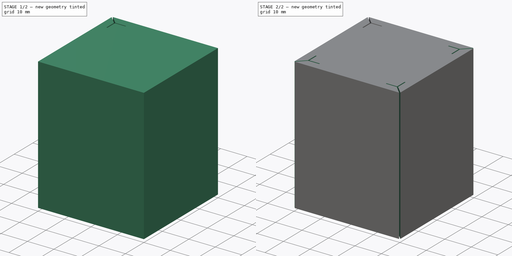
[diagram: build sequence overview — one tinted view per stage of 2, left to right]
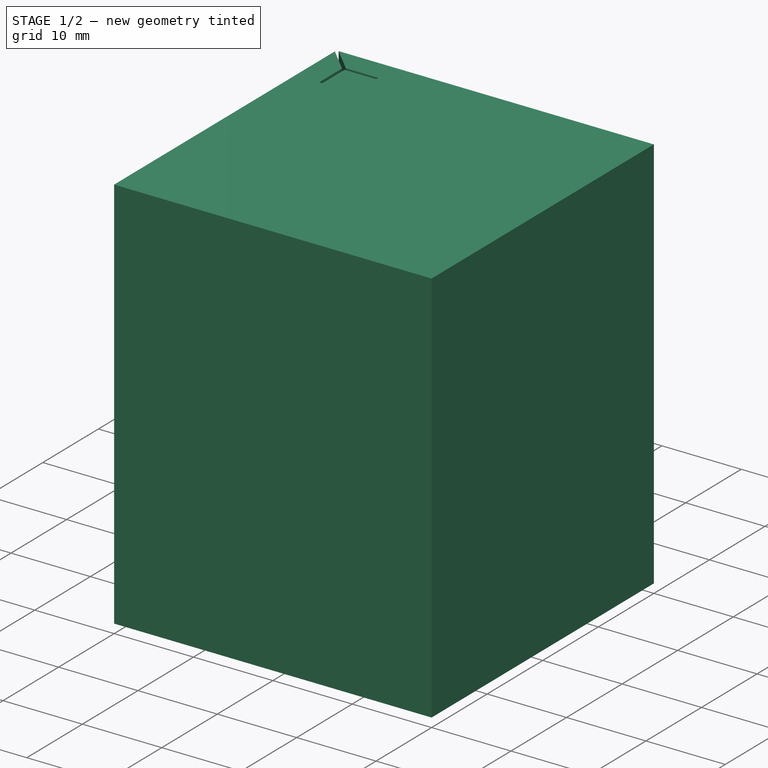
[diagram: stage 1 of 2 — iso view after this stage's code; geometry added in this stage tinted green]
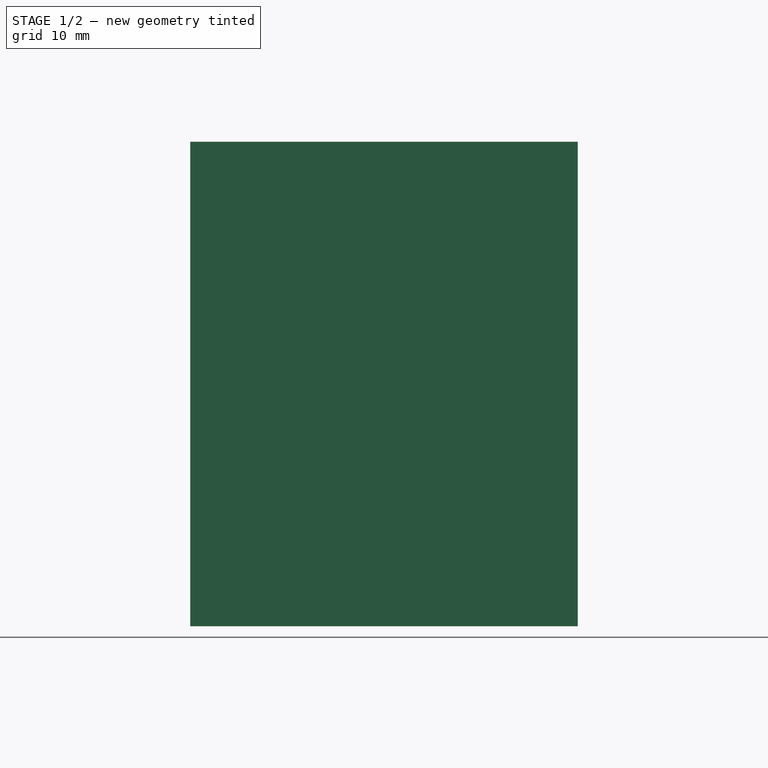
[diagram: stage 1 of 2 — front view after this stage's code; geometry added in this stage tinted green]
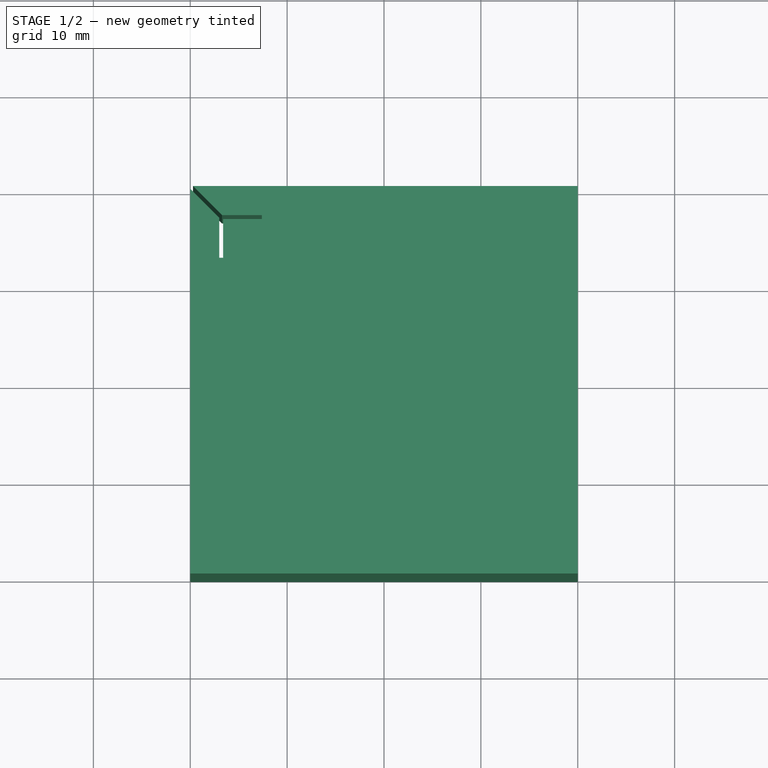
[diagram: stage 1 of 2 — top view after this stage's code; geometry added in this stage tinted green]
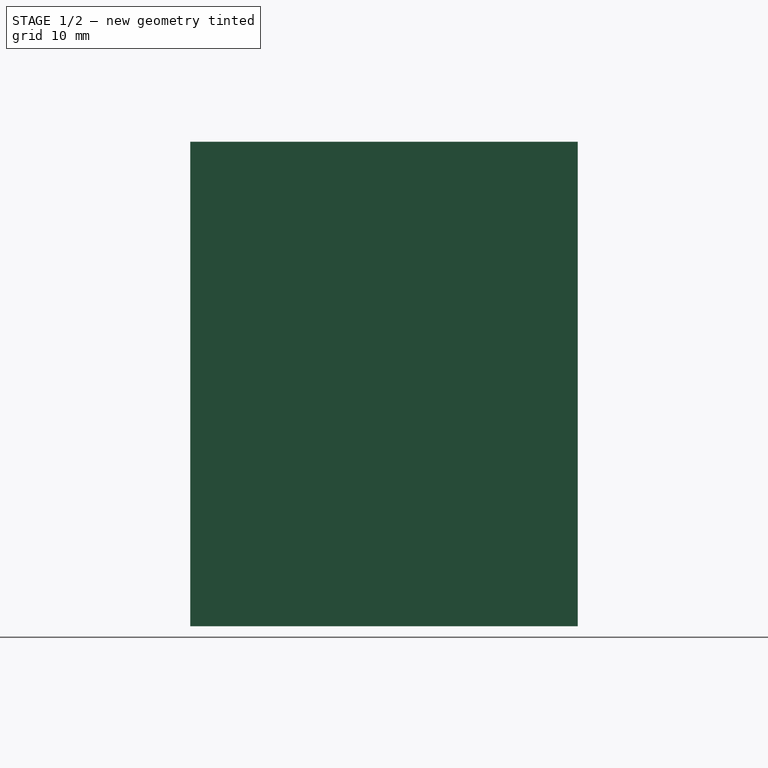
[diagram: stage 1 of 2 — right view after this stage's code; geometry added in this stage tinted green]
FCSTD DOCUMENT  (FreeCAD 0.19R)
Label: caixa_filamentador
License: All rights reserved
LicenseURL: http://en.wikipedia.org/wiki/All_rights_reserved
objects: Sketcher::SketchObject×2, PartDesign::Pad×1, PartDesign::Pocket×1, PartDesign::PolarPattern×1, PartDesign::Body×1
note: 8 computed .brp shape members not serialized (recipe doc carries the construction recipe); baked Part::Feature solids carry a one-line shape summary decoded from their .brp

FEATURE [Sketcher::SketchObject] Sketch
  FullyConstrained = true
  MapMode = 5
  Support = -> [XY_Plane]
  sketch-geometry (4):
    g0: LineSegment StartX=-20 StartY=20 StartZ=0 EndX=20 EndY=20 EndZ=0
    g1: LineSegment StartX=20 StartY=20 StartZ=0 EndX=20 EndY=-20 EndZ=0
    g2: LineSegment StartX=20 StartY=-20 StartZ=0 EndX=-20 EndY=-20 EndZ=0
    g3: LineSegment StartX=-20 StartY=-20 StartZ=0 EndX=-20 EndY=20 EndZ=0
  constraints (11):
    c: Coincident(g0,g1)
    c: Coincident(g1,g2)
    c: Coincident(g2,g3)
    c: Coincident(g3,g0)
    c: Horizontal(g0)
    c: Horizontal(g2)
    c: Vertical(g1)
    c: Vertical(g3)
    c: Symmetric(g1,g0,g-1)
    c: DistanceY(g1,g1) = 40
    c: Equal(g1,g2)
FEATURE [PartDesign::Pad] Pad
  Direction = (1,1,1)
  Length = 50
  Length2 = 100
  Profile = -> Sketch
  Type = 0
FEATURE [Sketcher::SketchObject] Sketch001
  FullyConstrained = true
  MapMode = 5
  Support = -> [XY_Plane]
  sketch-geometry (18):
    g0: LineSegment StartX=-20 StartY=20 StartZ=0 EndX=20 EndY=20 EndZ=0
    g1: LineSegment StartX=20 StartY=20 StartZ=0 EndX=20 EndY=-20 EndZ=0
    g2: LineSegment StartX=20 StartY=-20 StartZ=0 EndX=-20 EndY=-20 EndZ=0
    g3: LineSegment StartX=-20 StartY=-20 StartZ=0 EndX=-20 EndY=20 EndZ=0
    g4: LineSegment StartX=-17 StartY=17 StartZ=0 EndX=17 EndY=17 EndZ=0
    g5: LineSegment StartX=17 StartY=17 StartZ=0 EndX=17 EndY=-17 EndZ=0
    g6: LineSegment StartX=17 StartY=-17 StartZ=0 EndX=-17 EndY=-17 EndZ=0
    g7: LineSegment StartX=-17 StartY=-17 StartZ=0 EndX=-17 EndY=17 EndZ=0
    g8: LineSegment StartX=-19.7172 StartY=20 StartZ=0 EndX=-16.7172 EndY=17 EndZ=0
    g9: LineSegment StartX=-16.7172 StartY=17 StartZ=0 EndX=-12.6 EndY=17 EndZ=0
    g10: LineSegment StartX=-12.6 StartY=17 StartZ=0 EndX=-12.6 EndY=16.6 EndZ=0
    g11: LineSegment StartX=-12.6 StartY=16.6 StartZ=0 EndX=-16.6 EndY=16.6 EndZ=0
    g12: LineSegment StartX=-16.6 StartY=16.6 StartZ=0 EndX=-16.6 EndY=12.6 EndZ=0
    g13: LineSegment StartX=-16.6 StartY=12.6 StartZ=0 EndX=-17 EndY=12.6 EndZ=0
    g14: LineSegment StartX=-17 StartY=12.6 StartZ=0 EndX=-17 EndY=16.7172 EndZ=0
    g15: LineSegment StartX=-17 StartY=16.7172 StartZ=0 EndX=-20 EndY=19.7172 EndZ=0
    g16: LineSegment StartX=-20 StartY=19.7172 StartZ=0 EndX=-20 EndY=20 EndZ=0
    g17: LineSegment StartX=-20 StartY=20 StartZ=0 EndX=-19.7172 EndY=20 EndZ=0
  constraints (51):
    c: Coincident(g0,g1)
    c: Coincident(g1,g2)
    c: Coincident(g2,g3)
    c: Coincident(g3,g0)
    c: Horizontal(g0)
    c: Horizontal(g2)
    c: Vertical(g1)
    c: Vertical(g3)
    c: Equal(g1,g2)
    c: DistanceX(g2,g2) = 40
    c: Symmetric(g1,g0,g-1)
    c: Coincident(g4,g5)
    c: Coincident(g5,g6)
    c: Coincident(g6,g7)
    c: Coincident(g7,g4)
    c: Horizontal(g4)
    c: Horizontal(g6)
    c: Vertical(g5)
    c: Vertical(g7)
    c: Symmetric(g5,g4,g-1)
    c: Equal(g6,g5)
    c: PointOnObject(g8,g4)
    c: Coincident(g8,g9)
    c: PointOnObject(g9,g4)
    c: Coincident(g9,g10)
    c: Coincident(g10,g11)
    c: Horizontal(g11)
    c: Coincident(g11,g12)
    c: Vertical(g12)
    c: Coincident(g12,g13)
    c: PointOnObject(g13,g7)
    c: Coincident(g13,g14)
    c: PointOnObject(g14,g7)
    c: Coincident(g14,g15)
    c: Equal(g13,g10)
    c: Horizontal(g13)
    c: Vertical(g10)
    c: DistanceX(g13,g13) = 0.4
    c: Parallel(g15,g8)
    c: Equal(g9,g14)
    c: Equal(g11,g12)
    c: Distance(g14,g8) = 0.4
    c: PointOnObject(g8,g0)
    c: PointOnObject(g15,g3)
    c: Angle(g3,g15) = 0.785398
    c: Coincident(g15,g16)
    c: Coincident(g16,g0)
    c: Coincident(g16,g17)
    c: Coincident(g17,g8)
    c: DistanceY(g2,g6) = 3
    c: DistanceY(g12,g12) = 4
FEATURE [PartDesign::Pocket] Pocket
  BaseFeature = -> Pad
  Length = 5
  Length2 = 100
  Midplane = true
  Profile = -> Sketch001
  Type = 1
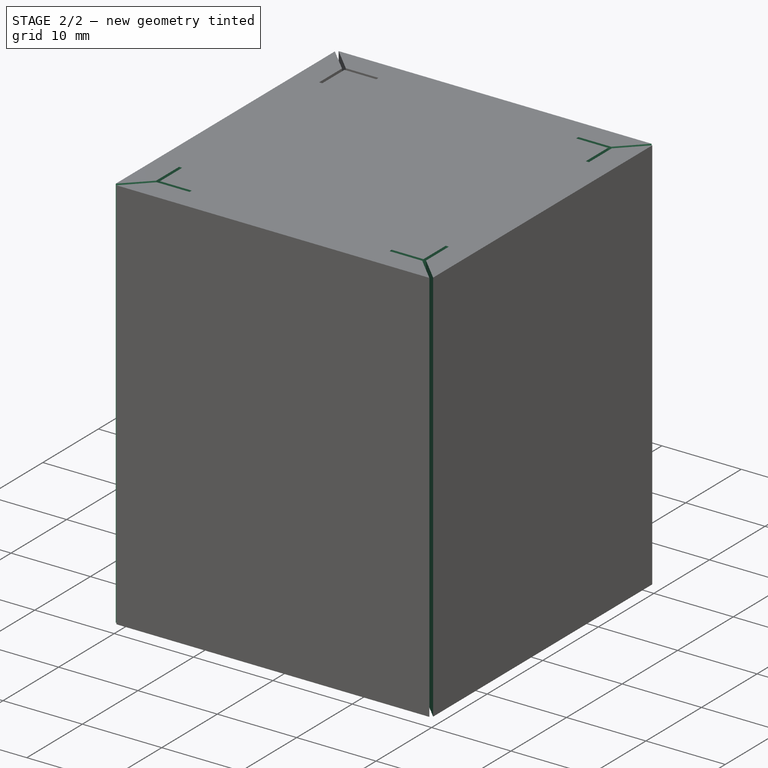
[diagram: stage 2 of 2 — iso view after this stage's code; geometry added in this stage tinted green]
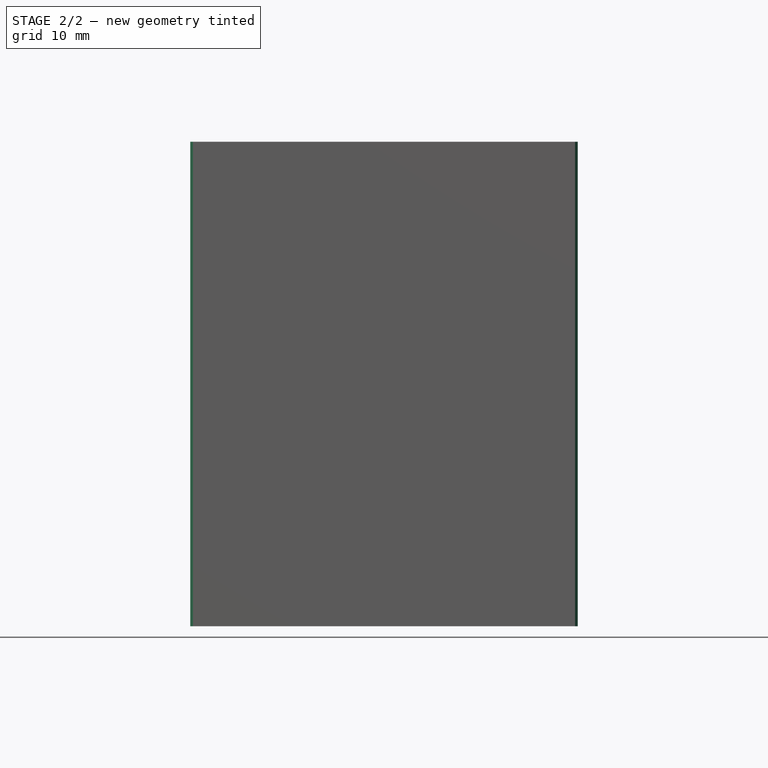
[diagram: stage 2 of 2 — front view after this stage's code; geometry added in this stage tinted green]
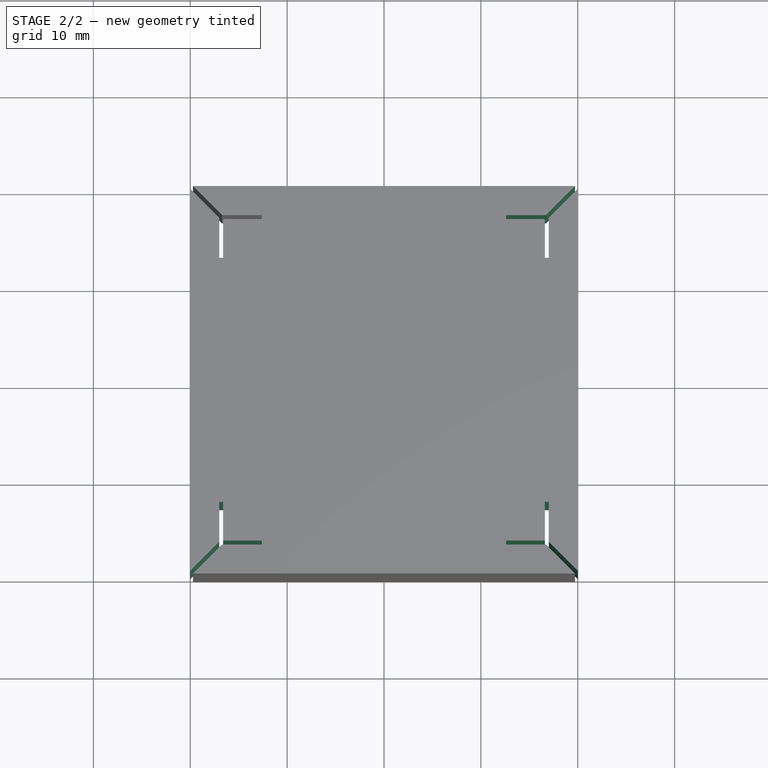
[diagram: stage 2 of 2 — top view after this stage's code; geometry added in this stage tinted green]
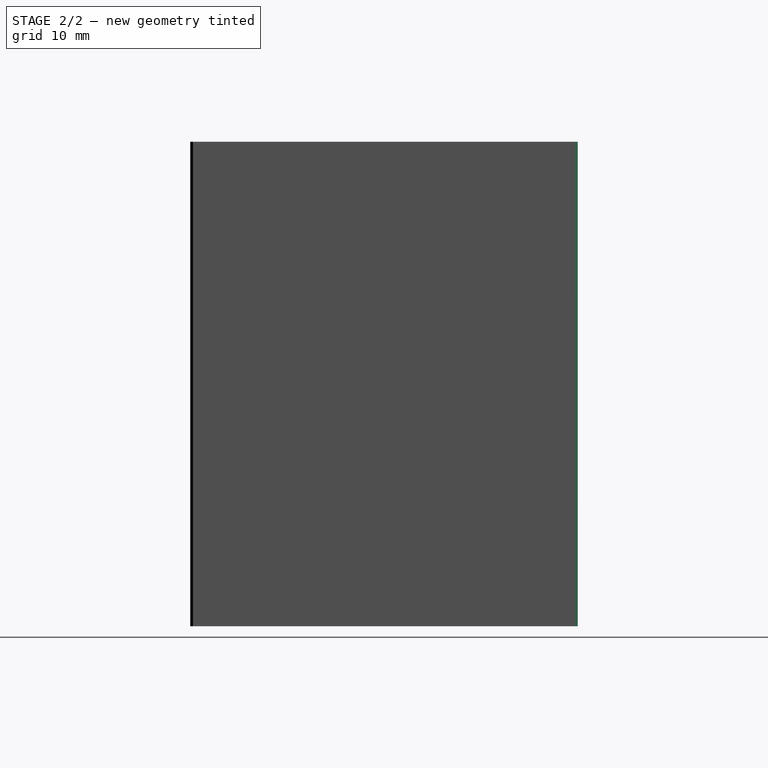
[diagram: stage 2 of 2 — right view after this stage's code; geometry added in this stage tinted green]
FEATURE [PartDesign::PolarPattern] PolarPattern
  Angle = 360
  Axis = -> Sketch001 [N_Axis]
  BaseFeature = -> Pocket
  Occurrences = 4
  Originals = -> [Pocket]
FEATURE [PartDesign::Body] Body
  Group = -> [Sketch,Pad,Sketch001,Pocket,PolarPattern]
  Origin = -> Origin
  Tip = -> PolarPattern
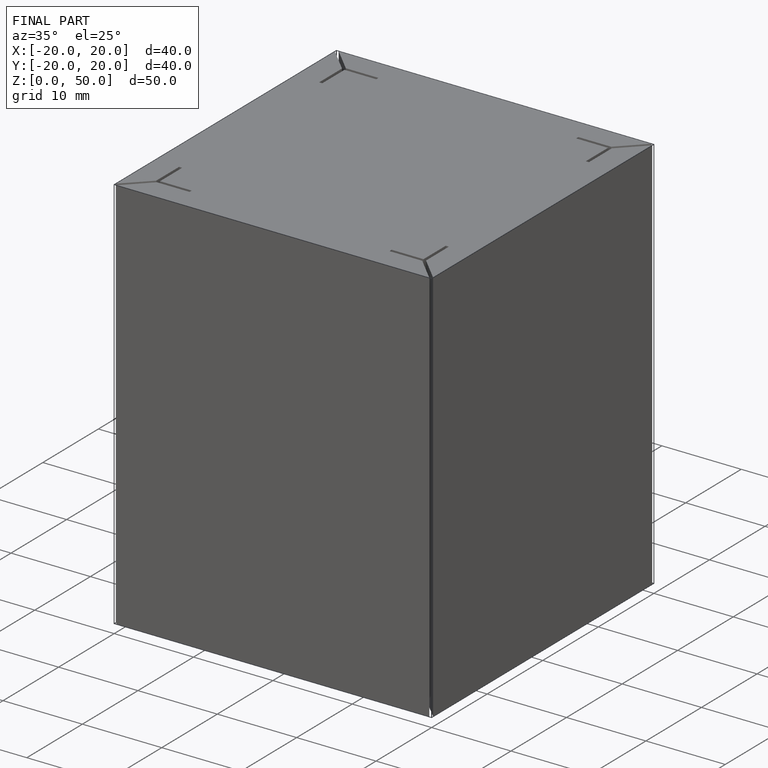
[diagram: finished part — iso view with bounding-box wireframe]
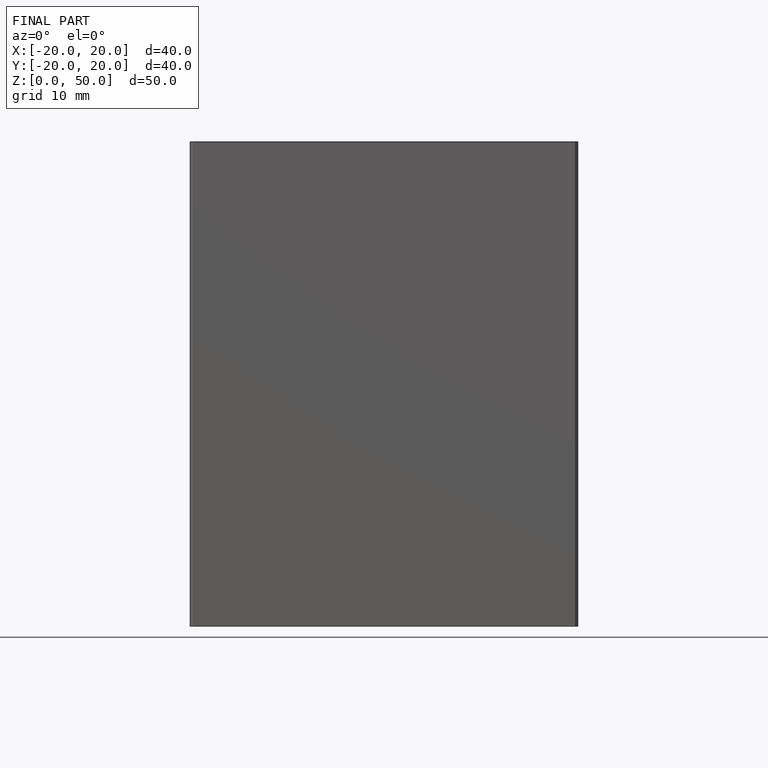
[diagram: finished part — front view with bounding-box wireframe]
